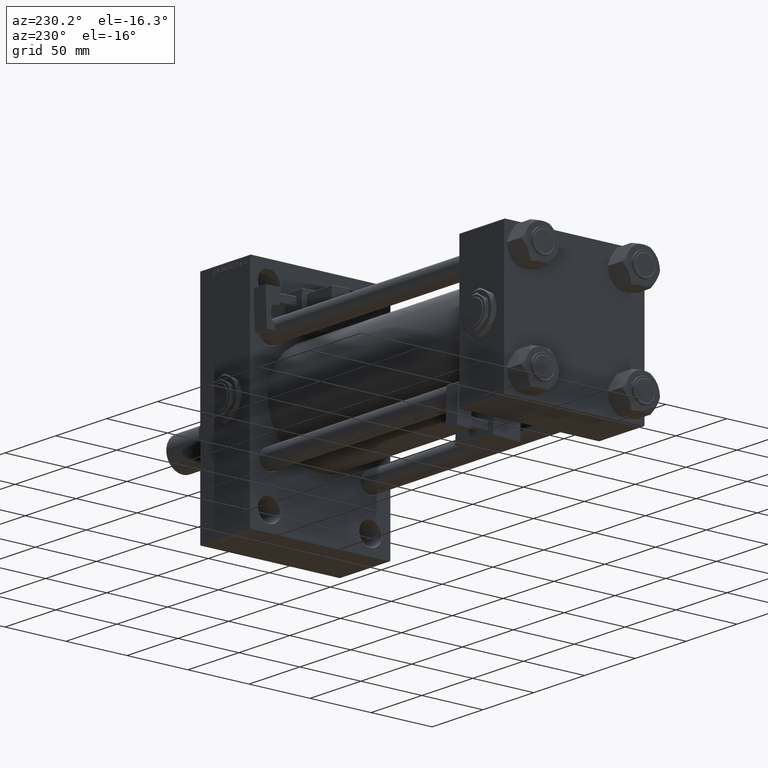
[diagram: clean part render]
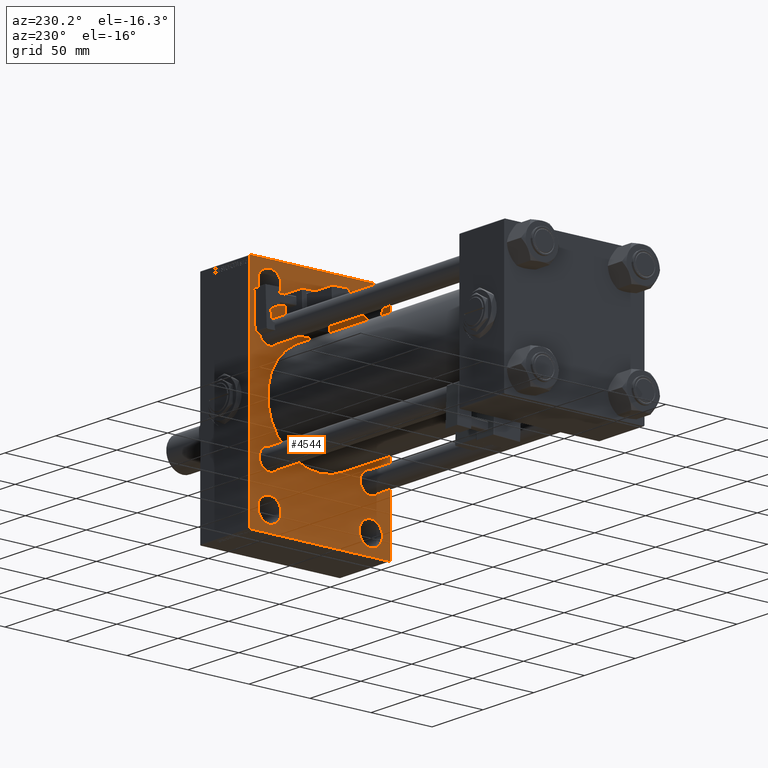
[diagram: same view with one face highlighted and labeled with its STEP entity id]
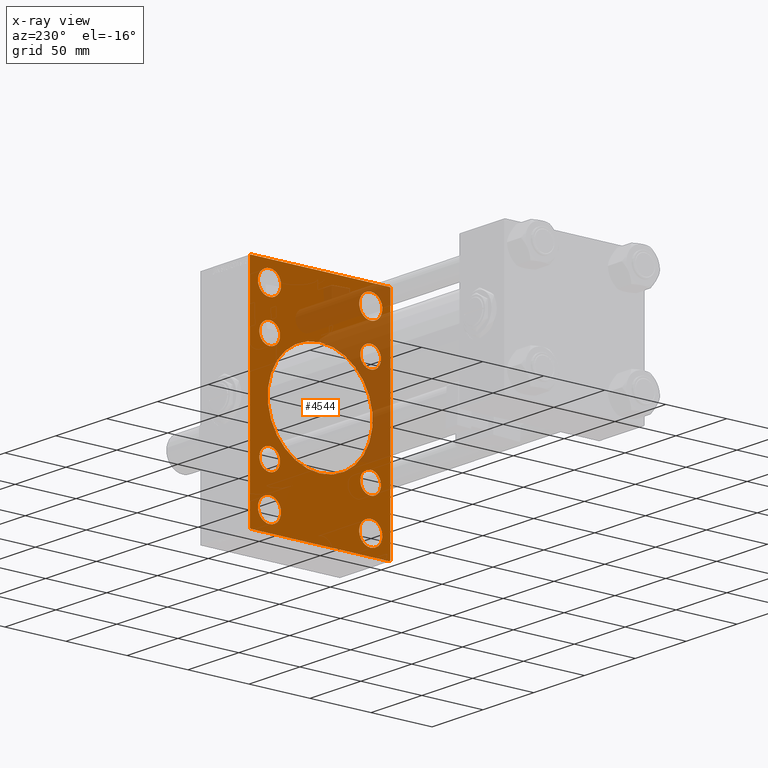
[diagram: x-ray of the same camera — body ghosted, the highlighted face saturated]
A machine part, auxiliary view. The second image highlights one B-rep face of the part: STEP entity #4544.
The next image is the same camera in x-ray: the body ghosted, the highlighted face saturated — about 27% of this face is hidden behind the body in this view.
In plain terms, the highlighted planar face has unit normal (-1, 0, 0).
Its self-contained STEP definition (entity closure, byte-faithful):
#75 = VECTOR ( 'NONE', #5619, 1000.000000000000114 ) ;
#249 = EDGE_CURVE ( 'NONE', #1807, #14561, #22707, .T. ) ;
#484 = ORIENTED_EDGE ( 'NONE', *, *, #25784, .T. ) ;
#512 = FACE_BOUND ( 'NONE', #20838, .T. ) ;
#1288 = VERTEX_POINT ( 'NONE', #16332 ) ;
#1307 = AXIS2_PLACEMENT_3D ( 'NONE', #32211, #12580, #36722 ) ;
#1533 = CARTESIAN_POINT ( 'NONE',  ( 250.0000000000000000, -41.49999999999999289, -83.99999999999998579 ) ) ;
#1562 = CIRCLE ( 'NONE', #6602, 9.500000000000008882 ) ;
#1671 = CIRCLE ( 'NONE', #16164, 9.500000000000008882 ) ;
#1676 = DIRECTION ( 'NONE',  ( 1.000000000000000000, -0.000000000000000000, 0.000000000000000000 ) ) ;
#1807 = VERTEX_POINT ( 'NONE', #26947 ) ;
#2171 = ORIENTED_EDGE ( 'NONE', *, *, #5627, .T. ) ;
#2248 = VECTOR ( 'NONE', #23697, 1000.000000000000000 ) ;
#2343 = DIRECTION ( 'NONE',  ( 0.000000000000000000, 0.000000000000000000, 1.000000000000000000 ) ) ;
#2645 = CIRCLE ( 'NONE', #32295, 9.500000000000008882 ) ;
#3345 = ORIENTED_EDGE ( 'NONE', *, *, #10263, .T. ) ;
#3670 = DIRECTION ( 'NONE',  ( 0.000000000000000000, -1.000000000000000000, -1.206764157201257291E-16 ) ) ;
#3715 = VECTOR ( 'NONE', #51386, 1000.000000000000000 ) ;
#3918 = DIRECTION ( 'NONE',  ( -0.000000000000000000, -0.7071067811865574537, -0.7071067811865376918 ) ) ;
#4096 = AXIS2_PLACEMENT_3D ( 'NONE', #46557, #47340, #31414 ) ;
#4105 = CARTESIAN_POINT ( 'NONE',  ( 250.0000000000000000, -41.49999999999999289, 84.00000000000001421 ) ) ;
#4251 = CARTESIAN_POINT ( 'NONE',  ( 250.0000000000000000, -41.34999999999998721, 41.35000000000000853 ) ) ;
#4308 = LINE ( 'NONE', #24970, #17535 ) ;
#4544 = ADVANCED_FACE ( 'NONE', ( #45083, #48269, #512, #49063, #11912, #8456, #44030, #20397, #16407, #36327 ), #16680, .T. ) ;
#4628 = CIRCLE ( 'NONE', #9732, 9.500000000000008882 ) ;
#4825 = AXIS2_PLACEMENT_3D ( 'NONE', #28424, #44631, #8262 ) ;
#5026 = DIRECTION ( 'NONE',  ( 0.000000000000000000, 0.000000000000000000, -1.000000000000000000 ) ) ;
#5267 = VERTEX_POINT ( 'NONE', #16016 ) ;
#5350 = CARTESIAN_POINT ( 'NONE',  ( 250.0000000000000000, -57.00000000000002132, -90.00000000000001421 ) ) ;
#5486 = CARTESIAN_POINT ( 'NONE',  ( 250.0000000000000000, -41.34999999999998721, -32.85000000000000142 ) ) ;
#5619 = DIRECTION ( 'NONE',  ( 0.000000000000000000, 0.7071067811865474617, -0.7071067811865474617 ) ) ;
#5627 = EDGE_CURVE ( 'NONE', #52202, #18061, #23277, .T. ) ;
#6045 = CARTESIAN_POINT ( 'NONE',  ( 250.0000000000000000, -41.34999999999998721, -41.35000000000000853 ) ) ;
#6557 = DIRECTION ( 'NONE',  ( 1.000000000000000000, -0.000000000000000000, 0.000000000000000000 ) ) ;
#6602 = AXIS2_PLACEMENT_3D ( 'NONE', #12033, #23708, #39923 ) ;
#6616 = VERTEX_POINT ( 'NONE', #48476 ) ;
#6660 = ORIENTED_EDGE ( 'NONE', *, *, #29143, .T. ) ;
#6994 = CARTESIAN_POINT ( 'NONE',  ( 250.0000000000000000, 57.49999999999997158, 89.99999999999998579 ) ) ;
#7176 = DIRECTION ( 'NONE',  ( 1.000000000000000000, -0.000000000000000000, 0.000000000000000000 ) ) ;
#7581 = EDGE_LOOP ( 'NONE', ( #52261, #33299 ) ) ;
#7645 = CARTESIAN_POINT ( 'NONE',  ( 250.0000000000000000, 57.49999999999997158, 89.99999999999998579 ) ) ;
#7713 = ORIENTED_EDGE ( 'NONE', *, *, #34832, .T. ) ;
#8193 = LINE ( 'NONE', #23587, #44584 ) ;
#8262 = DIRECTION ( 'NONE',  ( 0.000000000000000000, 0.000000000000000000, -1.000000000000000000 ) ) ;
#8456 = FACE_BOUND ( 'NONE', #9591, .T. ) ;
#8670 = ORIENTED_EDGE ( 'NONE', *, *, #30889, .T. ) ;
#8902 = CIRCLE ( 'NONE', #1307, 9.500000000000008882 ) ;
#8969 = EDGE_CURVE ( 'NONE', #14669, #36385, #39646, .T. ) ;
#9586 = LINE ( 'NONE', #50712, #75 ) ;
#9591 = EDGE_LOOP ( 'NONE', ( #31991, #7713 ) ) ;
#9732 = AXIS2_PLACEMENT_3D ( 'NONE', #26828, #47010, #38798 ) ;
#9922 = EDGE_CURVE ( 'NONE', #17753, #45400, #49618, .T. ) ;
#10026 = CARTESIAN_POINT ( 'NONE',  ( 250.0000000000000000, 41.34999999999999432, -41.35000000000000142 ) ) ;
#10263 = EDGE_CURVE ( 'NONE', #52238, #39684, #27676, .T. ) ;
#10814 = DIRECTION ( 'NONE',  ( 1.000000000000000000, -0.000000000000000000, 0.000000000000000000 ) ) ;
#11455 = DIRECTION ( 'NONE',  ( 1.000000000000000000, -0.000000000000000000, 0.000000000000000000 ) ) ;
#11596 = EDGE_CURVE ( 'NONE', #36385, #23018, #32034, .T. ) ;
#11761 = CIRCLE ( 'NONE', #48206, 43.00000000000000000 ) ;
#11912 = FACE_BOUND ( 'NONE', #13782, .T. ) ;
#12033 = CARTESIAN_POINT ( 'NONE',  ( 250.0000000000000000, 41.50000000000000711, 74.50000000000001421 ) ) ;
#12180 = DIRECTION ( 'NONE',  ( 1.000000000000000000, -0.000000000000000000, 0.000000000000000000 ) ) ;
#12580 = DIRECTION ( 'NONE',  ( 1.000000000000000000, -0.000000000000000000, 0.000000000000000000 ) ) ;
#13064 = CARTESIAN_POINT ( 'NONE',  ( 250.0000000000000000, 41.50000000000000711, -74.50000000000000000 ) ) ;
#13583 = EDGE_LOOP ( 'NONE', ( #26105, #3345 ) ) ;
#13603 = CARTESIAN_POINT ( 'NONE',  ( 250.0000000000000000, -41.34999999999998721, 41.35000000000000853 ) ) ;
#13782 = EDGE_LOOP ( 'NONE', ( #46844, #46614 ) ) ;
#13998 = DIRECTION ( 'NONE',  ( 0.000000000000000000, 0.000000000000000000, 1.000000000000000000 ) ) ;
#14011 = AXIS2_PLACEMENT_3D ( 'NONE', #51383, #30684, #15277 ) ;
#14504 = ORIENTED_EDGE ( 'NONE', *, *, #11596, .T. ) ;
#14561 = VERTEX_POINT ( 'NONE', #45976 ) ;
#14669 = VERTEX_POINT ( 'NONE', #36121 ) ;
#14760 = AXIS2_PLACEMENT_3D ( 'NONE', #32874, #44285, #40048 ) ;
#15277 = DIRECTION ( 'NONE',  ( 0.000000000000000000, 0.000000000000000000, 1.000000000000000000 ) ) ;
#15449 = CARTESIAN_POINT ( 'NONE',  ( 250.0000000000000000, -57.00000000000001421, 89.99999999999997158 ) ) ;
#15840 = CARTESIAN_POINT ( 'NONE',  ( 250.0000000000000000, 73.49999999999916156, -73.50000000000122213 ) ) ;
#16016 = CARTESIAN_POINT ( 'NONE',  ( 250.0000000000000000, 41.34999999999999432, -32.84999999999999432 ) ) ;
#16164 = AXIS2_PLACEMENT_3D ( 'NONE', #35831, #7176, #39840 ) ;
#16253 = ORIENTED_EDGE ( 'NONE', *, *, #33237, .T. ) ;
#16332 = CARTESIAN_POINT ( 'NONE',  ( 250.0000000000000000, -41.49999999999999289, -64.99999999999997158 ) ) ;
#16336 = LINE ( 'NONE', #16877, #18018 ) ;
#16407 = FACE_BOUND ( 'NONE', #13583, .T. ) ;
#16680 = PLANE ( 'NONE',  #14760 ) ;
#16877 = CARTESIAN_POINT ( 'NONE',  ( 250.0000000000000000, -73.50000000000275691, 73.49999999999562306 ) ) ;
#17471 = DIRECTION ( 'NONE',  ( 1.000000000000000000, -0.000000000000000000, 0.000000000000000000 ) ) ;
#17535 = VECTOR ( 'NONE', #41183, 1000.000000000000000 ) ;
#17753 = VERTEX_POINT ( 'NONE', #40824 ) ;
#18018 = VECTOR ( 'NONE', #48721, 1000.000000000000000 ) ;
#18061 = VERTEX_POINT ( 'NONE', #48919 ) ;
#18679 = EDGE_LOOP ( 'NONE', ( #28790, #16253 ) ) ;
#18779 = DIRECTION ( 'NONE',  ( 0.000000000000000000, 0.000000000000000000, 1.000000000000000000 ) ) ;
#18870 = VERTEX_POINT ( 'NONE', #51880 ) ;
#19001 = CARTESIAN_POINT ( 'NONE',  ( 250.0000000000000000, -57.50000000000002132, 89.99999999999997158 ) ) ;
#19091 = AXIS2_PLACEMENT_3D ( 'NONE', #35212, #6557, #13998 ) ;
#19448 = VERTEX_POINT ( 'NONE', #5350 ) ;
#20083 = ORIENTED_EDGE ( 'NONE', *, *, #23912, .T. ) ;
#20397 = FACE_BOUND ( 'NONE', #22833, .T. ) ;
#20496 = DIRECTION ( 'NONE',  ( 0.000000000000000000, 0.000000000000000000, 1.000000000000000000 ) ) ;
#20702 = ORIENTED_EDGE ( 'NONE', *, *, #8969, .T. ) ;
#20828 = VERTEX_POINT ( 'NONE', #44257 ) ;
#20838 = EDGE_LOOP ( 'NONE', ( #484, #50344 ) ) ;
#21249 = DIRECTION ( 'NONE',  ( 0.000000000000000000, 0.000000000000000000, 1.000000000000000000 ) ) ;
#21450 = EDGE_CURVE ( 'NONE', #30281, #6616, #1671, .T. ) ;
#21633 = CARTESIAN_POINT ( 'NONE',  ( 250.0000000000000000, -2.602085213965210642E-15, 43.00000000000000000 ) ) ;
#22287 = CIRCLE ( 'NONE', #51959, 8.500000000000007105 ) ;
#22290 = CARTESIAN_POINT ( 'NONE',  ( 250.0000000000000000, 56.99999999999992895, -90.00000000000000000 ) ) ;
#22707 = LINE ( 'NONE', #19001, #3715 ) ;
#22833 = EDGE_LOOP ( 'NONE', ( #2171, #26017 ) ) ;
#22976 = CARTESIAN_POINT ( 'NONE',  ( 250.0000000000000000, 57.49999999999997868, -89.49999999999990052 ) ) ;
#23018 = VERTEX_POINT ( 'NONE', #22290 ) ;
#23277 = CIRCLE ( 'NONE', #51286, 8.500000000000007105 ) ;
#23587 = CARTESIAN_POINT ( 'NONE',  ( 250.0000000000000000, -73.49999999999923261, -73.50000000000127898 ) ) ;
#23697 = DIRECTION ( 'NONE',  ( 0.000000000000000000, 3.854941057726238467E-17, -1.000000000000000000 ) ) ;
#23708 = DIRECTION ( 'NONE',  ( 1.000000000000000000, -0.000000000000000000, 0.000000000000000000 ) ) ;
#23912 = EDGE_CURVE ( 'NONE', #18870, #14669, #9586, .T. ) ;
#24071 = LINE ( 'NONE', #7645, #29538 ) ;
#24624 = DIRECTION ( 'NONE',  ( 0.000000000000000000, 0.000000000000000000, 1.000000000000000000 ) ) ;
#24970 = CARTESIAN_POINT ( 'NONE',  ( 250.0000000000000000, 57.49999999999997868, -90.00000000000000000 ) ) ;
#25143 = DIRECTION ( 'NONE',  ( 1.000000000000000000, -0.000000000000000000, 0.000000000000000000 ) ) ;
#25784 = EDGE_CURVE ( 'NONE', #20828, #49978, #2645, .T. ) ;
#26017 = ORIENTED_EDGE ( 'NONE', *, *, #46533, .T. ) ;
#26105 = ORIENTED_EDGE ( 'NONE', *, *, #48626, .T. ) ;
#26665 = CARTESIAN_POINT ( 'NONE',  ( 250.0000000000000000, 2.663896022368408223E-15, -43.00000000000000000 ) ) ;
#26828 = CARTESIAN_POINT ( 'NONE',  ( 250.0000000000000000, -41.49999999999999289, 74.50000000000001421 ) ) ;
#26947 = CARTESIAN_POINT ( 'NONE',  ( 250.0000000000000000, -57.50000000000002132, 89.49999999999991473 ) ) ;
#27676 = CIRCLE ( 'NONE', #4825, 43.00000000000000000 ) ;
#28114 = EDGE_CURVE ( 'NONE', #52225, #44621, #38438, .T. ) ;
#28424 = CARTESIAN_POINT ( 'NONE',  ( 250.0000000000000000, -2.602085213965210642E-15, 0.000000000000000000 ) ) ;
#28790 = ORIENTED_EDGE ( 'NONE', *, *, #21450, .T. ) ;
#28850 = EDGE_CURVE ( 'NONE', #1807, #32357, #16336, .T. ) ;
#29143 = EDGE_CURVE ( 'NONE', #1288, #45319, #32421, .T. ) ;
#29146 = DIRECTION ( 'NONE',  ( 0.000000000000000000, 0.000000000000000000, 1.000000000000000000 ) ) ;
#29538 = VECTOR ( 'NONE', #3670, 1000.000000000000000 ) ;
#29789 = DIRECTION ( 'NONE',  ( 0.000000000000000000, 0.000000000000000000, 1.000000000000000000 ) ) ;
#30281 = VERTEX_POINT ( 'NONE', #4105 ) ;
#30684 = DIRECTION ( 'NONE',  ( 1.000000000000000000, -0.000000000000000000, 0.000000000000000000 ) ) ;
#30889 = EDGE_CURVE ( 'NONE', #5267, #45893, #22287, .T. ) ;
#31414 = DIRECTION ( 'NONE',  ( 0.000000000000000000, 0.000000000000000000, 1.000000000000000000 ) ) ;
#31771 = AXIS2_PLACEMENT_3D ( 'NONE', #39329, #11455, #43568 ) ;
#31991 = ORIENTED_EDGE ( 'NONE', *, *, #9922, .T. ) ;
#32034 = LINE ( 'NONE', #15840, #34429 ) ;
#32211 = CARTESIAN_POINT ( 'NONE',  ( 250.0000000000000000, 41.50000000000000711, -74.50000000000000000 ) ) ;
#32295 = AXIS2_PLACEMENT_3D ( 'NONE', #13064, #48910, #20496 ) ;
#32357 = VERTEX_POINT ( 'NONE', #15449 ) ;
#32421 = CIRCLE ( 'NONE', #44318, 9.500000000000008882 ) ;
#32866 = CARTESIAN_POINT ( 'NONE',  ( 250.0000000000000000, 41.34999999999999432, 41.35000000000000142 ) ) ;
#32874 = CARTESIAN_POINT ( 'NONE',  ( 250.0000000000000000, 0.000000000000000000, 0.000000000000000000 ) ) ;
#32901 = CARTESIAN_POINT ( 'NONE',  ( 250.0000000000000000, 41.50000000000000711, -84.00000000000000000 ) ) ;
#33237 = EDGE_CURVE ( 'NONE', #6616, #30281, #4628, .T. ) ;
#33299 = ORIENTED_EDGE ( 'NONE', *, *, #46594, .T. ) ;
#34344 = EDGE_LOOP ( 'NONE', ( #6660, #38522 ) ) ;
#34424 = VERTEX_POINT ( 'NONE', #49384 ) ;
#34429 = VECTOR ( 'NONE', #3918, 999.9999999999998863 ) ;
#34832 = EDGE_CURVE ( 'NONE', #45400, #17753, #41978, .T. ) ;
#34862 = CARTESIAN_POINT ( 'NONE',  ( 250.0000000000000000, -41.34999999999998721, 49.85000000000002274 ) ) ;
#35031 = ORIENTED_EDGE ( 'NONE', *, *, #39156, .T. ) ;
#35212 = CARTESIAN_POINT ( 'NONE',  ( 250.0000000000000000, 41.34999999999999432, 41.35000000000000142 ) ) ;
#35559 = EDGE_CURVE ( 'NONE', #34424, #50154, #49511, .T. ) ;
#35831 = CARTESIAN_POINT ( 'NONE',  ( 250.0000000000000000, -41.49999999999999289, 74.50000000000001421 ) ) ;
#36121 = CARTESIAN_POINT ( 'NONE',  ( 250.0000000000000000, 57.49999999999997158, 89.49999999999992895 ) ) ;
#36174 = ORIENTED_EDGE ( 'NONE', *, *, #28850, .T. ) ;
#36327 = FACE_OUTER_BOUND ( 'NONE', #45364, .T. ) ;
#36385 = VERTEX_POINT ( 'NONE', #22976 ) ;
#36611 = DIRECTION ( 'NONE',  ( 0.000000000000000000, 0.000000000000000000, 1.000000000000000000 ) ) ;
#36657 = DIRECTION ( 'NONE',  ( 1.000000000000000000, -0.000000000000000000, 0.000000000000000000 ) ) ;
#36722 = DIRECTION ( 'NONE',  ( 0.000000000000000000, 0.000000000000000000, 1.000000000000000000 ) ) ;
#36869 = DIRECTION ( 'NONE',  ( 1.000000000000000000, 0.000000000000000000, 0.000000000000000000 ) ) ;
#37610 = EDGE_CURVE ( 'NONE', #49978, #20828, #8902, .T. ) ;
#37732 = CIRCLE ( 'NONE', #31771, 9.500000000000008882 ) ;
#37839 = EDGE_CURVE ( 'NONE', #45319, #1288, #37732, .T. ) ;
#38107 = CARTESIAN_POINT ( 'NONE',  ( 250.0000000000000000, 41.50000000000000711, 65.00000000000000000 ) ) ;
#38390 = CARTESIAN_POINT ( 'NONE',  ( 250.0000000000000000, 41.34999999999999432, 32.84999999999999432 ) ) ;
#38438 = CIRCLE ( 'NONE', #44396, 8.500000000000007105 ) ;
#38522 = ORIENTED_EDGE ( 'NONE', *, *, #37839, .T. ) ;
#38798 = DIRECTION ( 'NONE',  ( 0.000000000000000000, 0.000000000000000000, 1.000000000000000000 ) ) ;
#39012 = CIRCLE ( 'NONE', #42418, 8.500000000000007105 ) ;
#39156 = EDGE_CURVE ( 'NONE', #19448, #14561, #8193, .T. ) ;
#39329 = CARTESIAN_POINT ( 'NONE',  ( 250.0000000000000000, -41.49999999999999289, -74.49999999999998579 ) ) ;
#39646 = LINE ( 'NONE', #6994, #2248 ) ;
#39684 = VERTEX_POINT ( 'NONE', #21633 ) ;
#39725 = ORIENTED_EDGE ( 'NONE', *, *, #40415, .T. ) ;
#39840 = DIRECTION ( 'NONE',  ( 0.000000000000000000, 0.000000000000000000, 1.000000000000000000 ) ) ;
#39923 = DIRECTION ( 'NONE',  ( 0.000000000000000000, 0.000000000000000000, 1.000000000000000000 ) ) ;
#40048 = DIRECTION ( 'NONE',  ( -0.000000000000000000, 0.000000000000000000, 1.000000000000000000 ) ) ;
#40064 = EDGE_LOOP ( 'NONE', ( #8670, #39725 ) ) ;
#40415 = EDGE_CURVE ( 'NONE', #45893, #5267, #47984, .T. ) ;
#40824 = CARTESIAN_POINT ( 'NONE',  ( 250.0000000000000000, 41.34999999999999432, 49.85000000000001563 ) ) ;
#41139 = EDGE_CURVE ( 'NONE', #23018, #19448, #4308, .T. ) ;
#41183 = DIRECTION ( 'NONE',  ( 0.000000000000000000, -1.000000000000000000, -1.206764157201257045E-16 ) ) ;
#41385 = CARTESIAN_POINT ( 'NONE',  ( 250.0000000000000000, -2.602085213965210642E-15, 0.000000000000000000 ) ) ;
#41978 = CIRCLE ( 'NONE', #19091, 8.500000000000007105 ) ;
#42247 = ORIENTED_EDGE ( 'NONE', *, *, #45235, .F. ) ;
#42418 = AXIS2_PLACEMENT_3D ( 'NONE', #4251, #12180, #36611 ) ;
#42615 = CARTESIAN_POINT ( 'NONE',  ( 250.0000000000000000, -41.34999999999998721, 32.85000000000000142 ) ) ;
#42697 = CARTESIAN_POINT ( 'NONE',  ( 250.0000000000000000, 41.34999999999999432, -49.85000000000001563 ) ) ;
#43568 = DIRECTION ( 'NONE',  ( 0.000000000000000000, 0.000000000000000000, 1.000000000000000000 ) ) ;
#43747 = AXIS2_PLACEMENT_3D ( 'NONE', #10026, #50892, #18779 ) ;
#43771 = DIRECTION ( 'NONE',  ( 0.000000000000000000, -0.7071067811865573427, 0.7071067811865378028 ) ) ;
#44030 = FACE_BOUND ( 'NONE', #40064, .T. ) ;
#44257 = CARTESIAN_POINT ( 'NONE',  ( 250.0000000000000000, 41.50000000000000711, -64.99999999999998579 ) ) ;
#44285 = DIRECTION ( 'NONE',  ( -1.000000000000000000, 0.000000000000000000, -0.000000000000000000 ) ) ;
#44318 = AXIS2_PLACEMENT_3D ( 'NONE', #48869, #36657, #21249 ) ;
#44396 = AXIS2_PLACEMENT_3D ( 'NONE', #13603, #1676, #29789 ) ;
#44584 = VECTOR ( 'NONE', #43771, 1000.000000000000000 ) ;
#44621 = VERTEX_POINT ( 'NONE', #34862 ) ;
#44631 = DIRECTION ( 'NONE',  ( 1.000000000000000000, 0.000000000000000000, 0.000000000000000000 ) ) ;
#45077 = ORIENTED_EDGE ( 'NONE', *, *, #249, .F. ) ;
#45083 = FACE_BOUND ( 'NONE', #18679, .T. ) ;
#45235 = EDGE_CURVE ( 'NONE', #18870, #32357, #24071, .T. ) ;
#45319 = VERTEX_POINT ( 'NONE', #1533 ) ;
#45364 = EDGE_LOOP ( 'NONE', ( #50886, #35031, #45077, #36174, #42247, #20083, #20702, #14504 ) ) ;
#45400 = VERTEX_POINT ( 'NONE', #38390 ) ;
#45719 = CIRCLE ( 'NONE', #4096, 8.500000000000007105 ) ;
#45893 = VERTEX_POINT ( 'NONE', #42697 ) ;
#45976 = CARTESIAN_POINT ( 'NONE',  ( 250.0000000000000000, -57.50000000000002132, -89.49999999999997158 ) ) ;
#46533 = EDGE_CURVE ( 'NONE', #18061, #52202, #45719, .T. ) ;
#46557 = CARTESIAN_POINT ( 'NONE',  ( 250.0000000000000000, -41.34999999999998721, -41.35000000000000853 ) ) ;
#46594 = EDGE_CURVE ( 'NONE', #50154, #34424, #1562, .T. ) ;
#46614 = ORIENTED_EDGE ( 'NONE', *, *, #28114, .T. ) ;
#46844 = ORIENTED_EDGE ( 'NONE', *, *, #50845, .T. ) ;
#46899 = CARTESIAN_POINT ( 'NONE',  ( 250.0000000000000000, 41.34999999999999432, -41.35000000000000142 ) ) ;
#47010 = DIRECTION ( 'NONE',  ( 1.000000000000000000, -0.000000000000000000, 0.000000000000000000 ) ) ;
#47340 = DIRECTION ( 'NONE',  ( 1.000000000000000000, -0.000000000000000000, 0.000000000000000000 ) ) ;
#47984 = CIRCLE ( 'NONE', #43747, 8.500000000000007105 ) ;
#48206 = AXIS2_PLACEMENT_3D ( 'NONE', #41385, #36869, #5026 ) ;
#48269 = FACE_BOUND ( 'NONE', #34344, .T. ) ;
#48476 = CARTESIAN_POINT ( 'NONE',  ( 250.0000000000000000, -41.49999999999999289, 65.00000000000000000 ) ) ;
#48626 = EDGE_CURVE ( 'NONE', #39684, #52238, #11761, .T. ) ;
#48721 = DIRECTION ( 'NONE',  ( -0.000000000000000000, 0.7071067811865131558, 0.7071067811865818786 ) ) ;
#48869 = CARTESIAN_POINT ( 'NONE',  ( 250.0000000000000000, -41.49999999999999289, -74.49999999999998579 ) ) ;
#48910 = DIRECTION ( 'NONE',  ( 1.000000000000000000, -0.000000000000000000, 0.000000000000000000 ) ) ;
#48919 = CARTESIAN_POINT ( 'NONE',  ( 250.0000000000000000, -41.34999999999998721, -49.85000000000002274 ) ) ;
#49063 = FACE_BOUND ( 'NONE', #7581, .T. ) ;
#49384 = CARTESIAN_POINT ( 'NONE',  ( 250.0000000000000000, 41.50000000000000711, 84.00000000000001421 ) ) ;
#49511 = CIRCLE ( 'NONE', #14011, 9.500000000000008882 ) ;
#49618 = CIRCLE ( 'NONE', #50444, 8.500000000000007105 ) ;
#49978 = VERTEX_POINT ( 'NONE', #32901 ) ;
#50154 = VERTEX_POINT ( 'NONE', #38107 ) ;
#50344 = ORIENTED_EDGE ( 'NONE', *, *, #37610, .T. ) ;
#50444 = AXIS2_PLACEMENT_3D ( 'NONE', #32866, #25143, #24624 ) ;
#50712 = CARTESIAN_POINT ( 'NONE',  ( 250.0000000000000000, 73.49999999999994316, 73.49999999999994316 ) ) ;
#50845 = EDGE_CURVE ( 'NONE', #44621, #52225, #39012, .T. ) ;
#50886 = ORIENTED_EDGE ( 'NONE', *, *, #41139, .T. ) ;
#50892 = DIRECTION ( 'NONE',  ( 1.000000000000000000, -0.000000000000000000, 0.000000000000000000 ) ) ;
#51286 = AXIS2_PLACEMENT_3D ( 'NONE', #6045, #17471, #29146 ) ;
#51383 = CARTESIAN_POINT ( 'NONE',  ( 250.0000000000000000, 41.50000000000000711, 74.50000000000001421 ) ) ;
#51386 = DIRECTION ( 'NONE',  ( 0.000000000000000000, 0.000000000000000000, -1.000000000000000000 ) ) ;
#51880 = CARTESIAN_POINT ( 'NONE',  ( 250.0000000000000000, 56.99999999999992184, 89.99999999999998579 ) ) ;
#51959 = AXIS2_PLACEMENT_3D ( 'NONE', #46899, #10814, #2343 ) ;
#52202 = VERTEX_POINT ( 'NONE', #5486 ) ;
#52225 = VERTEX_POINT ( 'NONE', #42615 ) ;
#52238 = VERTEX_POINT ( 'NONE', #26665 ) ;
#52261 = ORIENTED_EDGE ( 'NONE', *, *, #35559, .T. ) ;